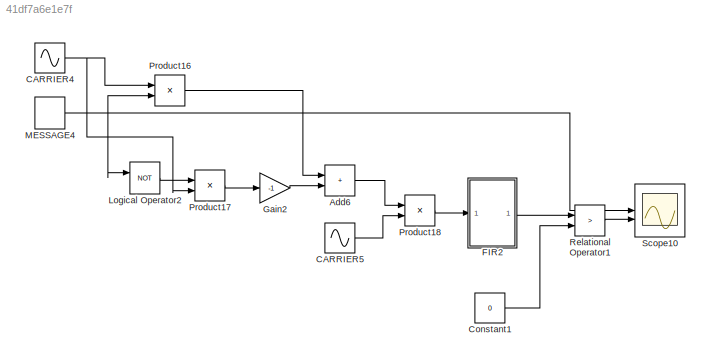
MODEL slx_41df7a6e1e7f
KIND model
CONFIG AbsTol = auto
CONFIG EnableMultiTasking = off
CONFIG FixedStep = auto
CONFIG MaxStep = auto
CONFIG MinStep = auto
CONFIG RelTol = 1e-3
CONFIG SampleTimeConstraint = Unconstrained
CONFIG SolverName = VariableStepAuto
CONFIG StartTime = 0.0
CONFIG StopTime = 10.0
BLOCK [Sum] Add6
  IconShape = rectangular
BLOCK [Sin] CARRIER4
  Frequency = 100
  SampleTime = 0
BLOCK [Sin] CARRIER5
  Frequency = 100
  SampleTime = 0
BLOCK [Constant] Constant1
  Value = 0
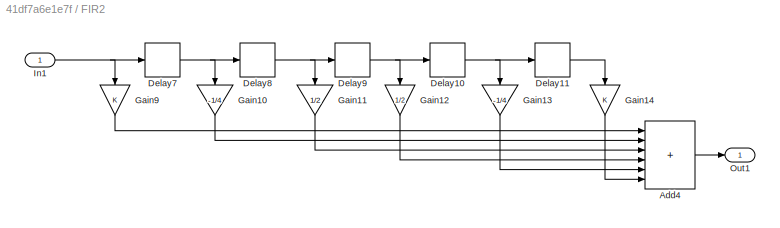
BLOCK [SubSystem] FIR2
BLOCK [Sum] FIR2/Add4
  IconShape = rectangular
  Inputs = ++++++
BLOCK [Delay] FIR2/Delay10
  DelayLength = 1
  InputPortMap = u0
BLOCK [Delay] FIR2/Delay11
  DelayLength = 1
  InputPortMap = u0
BLOCK [Delay] FIR2/Delay7
  DelayLength = 1
  InputPortMap = u0
BLOCK [Delay] FIR2/Delay8
  DelayLength = 1
  InputPortMap = u0
BLOCK [Delay] FIR2/Delay9
  DelayLength = 1
  InputPortMap = u0
BLOCK [Gain] FIR2/Gain10
  Gain = -1/4
  NameLocation = left
BLOCK [Gain] FIR2/Gain11
  Gain = 1/2
  NameLocation = left
BLOCK [Gain] FIR2/Gain12
  Gain = 1/2
  NameLocation = left
BLOCK [Gain] FIR2/Gain13
  Gain = -1/4
  NameLocation = left
BLOCK [Gain] FIR2/Gain14
  NameLocation = left
BLOCK [Gain] FIR2/Gain9
  NameLocation = left
BLOCK [Inport] FIR2/In1
BLOCK [Outport] FIR2/Out1
BLOCK [Gain] Gain2
  Gain = -1
BLOCK [Logic] Logical Operator2
  AllPortsSameDT = off
  Operator = NOT
  OutDataTypeStr = boolean
BLOCK [DiscretePulseGenerator] MESSAGE4
  Period = 1
  PulseType = Time based
  PulseWidth = 50
BLOCK [Product] Product16
BLOCK [Product] Product17
BLOCK [Product] Product18
BLOCK [RelationalOperator] Relational Operator1
  InputSameDT = off
  Operator = >
  OutDataTypeStr = boolean
  RndMeth = Simplest
BLOCK [Scope] Scope10
  Floating = off
  NumInputPorts = 2
  ScopeSpecificationString = Simulink.scopes.TimeScopeBlockCfg('CurrentConfiguration', extmgr.ConfigurationSet(extmgr.Configuration('Core','General UI',true),extmgr.Configuration('Core','Source UI',true),extmgr.Configuration('Sources','WiredSimulink',true),extmgr.Configuration('Visuals','Time Domain',true,'SerializedDisplays',{struct('MinYLimReal','-0.125','MaxYLimReal','1.125','YLabelReal','','MinYLimMag','0.00000','MaxYLimM...<+1929ch>
LINE Add6:1 -> Product18:1
NET CARRIER4:1 -> Product16:1, Product17:2
LINE CARRIER5:1 -> Product18:2
LINE Constant1:1 -> Relational Operator1:2
LINE FIR2/Add4:1 -> FIR2/Out1:1
NET FIR2/Delay10:1 -> FIR2/Delay11:1, FIR2/Gain13:1
LINE FIR2/Delay11:1 -> FIR2/Gain14:1
NET FIR2/Delay7:1 -> FIR2/Delay8:1, FIR2/Gain10:1
NET FIR2/Delay8:1 -> FIR2/Delay9:1, FIR2/Gain11:1
NET FIR2/Delay9:1 -> FIR2/Delay10:1, FIR2/Gain12:1
LINE FIR2/Gain10:1 -> FIR2/Add4:2
LINE FIR2/Gain11:1 -> FIR2/Add4:3
LINE FIR2/Gain12:1 -> FIR2/Add4:4
LINE FIR2/Gain13:1 -> FIR2/Add4:5
LINE FIR2/Gain14:1 -> FIR2/Add4:6
LINE FIR2/Gain9:1 -> FIR2/Add4:1
NET FIR2/In1:1 -> FIR2/Delay7:1, FIR2/Gain9:1
LINE FIR2:1 -> Relational Operator1:1
LINE Gain2:1 -> Add6:2
LINE Logical Operator2:1 -> Product17:1
NET MESSAGE4:1 -> Logical Operator2:1, Product16:2, Scope10:1
LINE Product16:1 -> Add6:1
LINE Product17:1 -> Gain2:1
LINE Product18:1 -> FIR2:1
LINE Relational Operator1:1 -> Scope10:2
note: NET lines group one-source signal fan-out (src -> all destinations, sorted); 1:1 wires keep LINE
